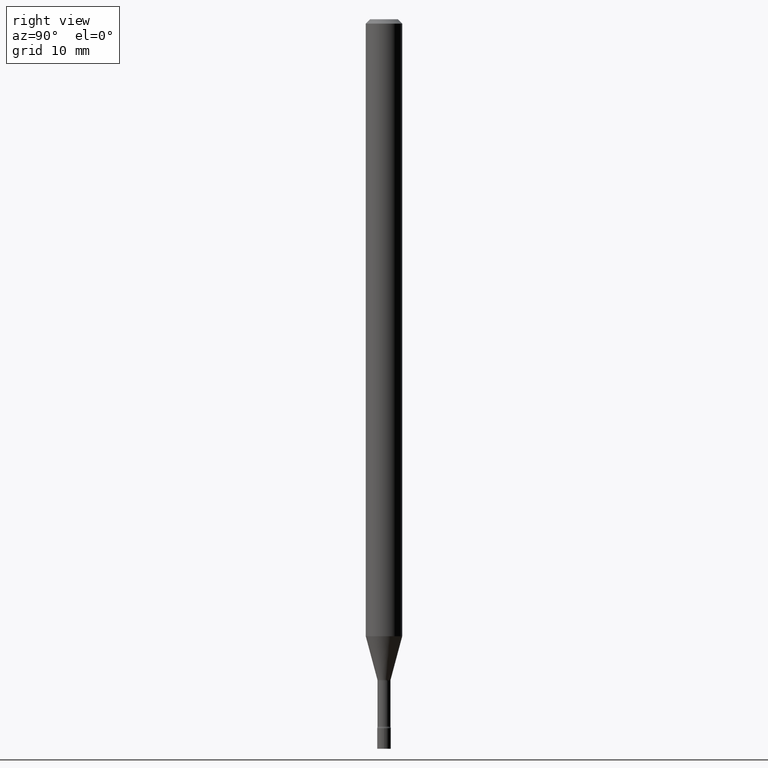
[diagram: clean part render]
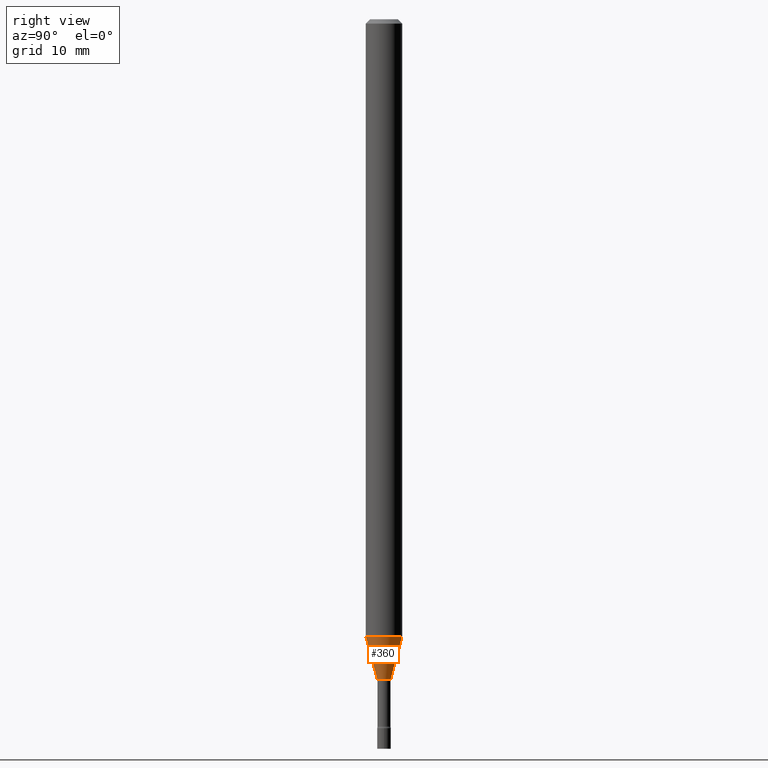
[diagram: same view with one face highlighted and labeled with its STEP entity id]
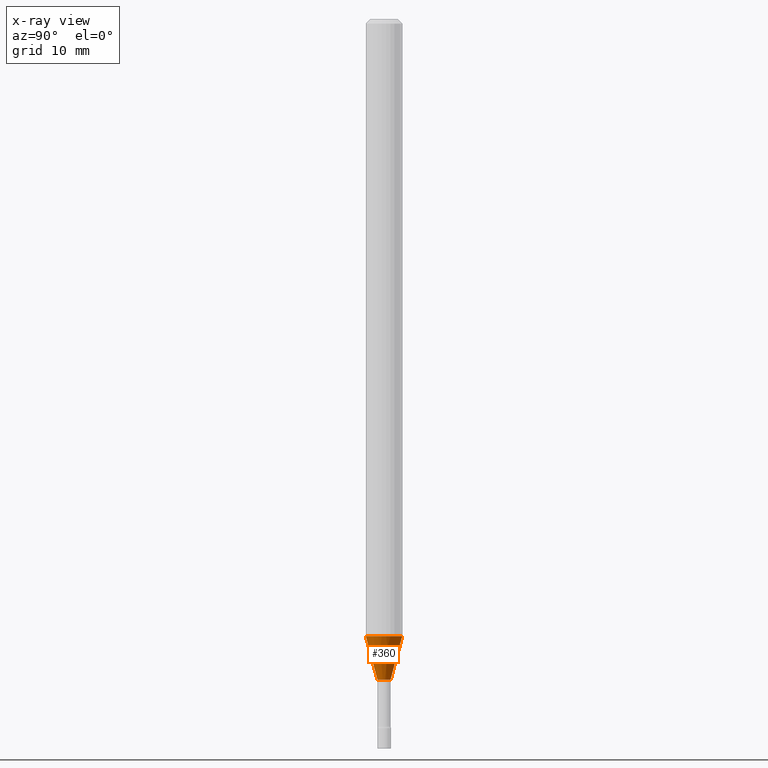
[diagram: x-ray of the same camera — body ghosted, the highlighted face saturated]
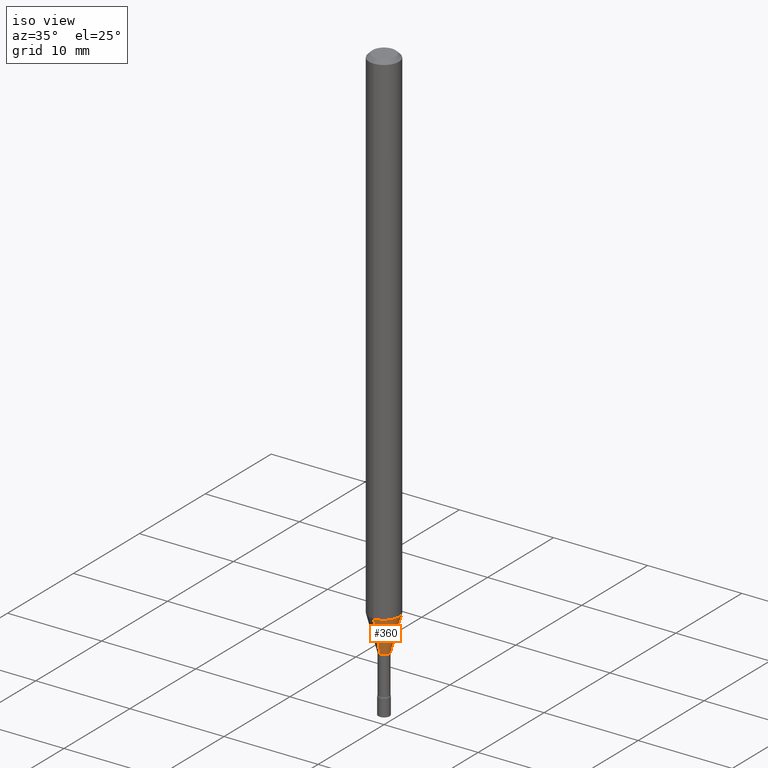
[diagram: same view with one face highlighted and labeled with its STEP entity id]
A machine part, right view. The second image highlights one B-rep face of the part: STEP entity #360.
The next image is the same camera in x-ray: the body ghosted, the highlighted face saturated — about 0% of this face is hidden behind the body in this view.
A second angle (iso view) of the same face is appended — the face is thin or edge-on in the first view.
In plain terms, the highlighted conical surface has half-angle 15 deg.
Its self-contained STEP definition (entity closure, byte-faithful):
#3 = EDGE_CURVE ( 'NONE', #193, #208, #375, .T. ) ;
#4 = CARTESIAN_POINT ( 'NONE',  ( 4.440892098501140893E-16, 0.06249999999999258926, -2.114225147374217961 ) ) ;
#31 = DIRECTION ( 'NONE',  ( -2.445456510120580117E-29, 3.491498947507439183E-15, 1.000000000000000000 ) ) ;
#35 = DIRECTION ( 'NONE',  ( -6.982962677686265922E-15, -1.000000000000000000, 0.000000000000000000 ) ) ;
#38 = CARTESIAN_POINT ( 'NONE',  ( 5.534294291500757291E-29, -7.901585088102242025E-15, -2.263092501787272948 ) ) ;
#88 = CIRCLE ( 'NONE', #151, 0.06250000000000000000 ) ;
#90 = CARTESIAN_POINT ( 'NONE',  ( 5.534294291500757291E-29, -7.901585088102242025E-15, -2.263092501787272948 ) ) ;
#96 = EDGE_LOOP ( 'NONE', ( #272, #489, #343, #479 ) ) ;
#98 = EDGE_CURVE ( 'NONE', #208, #400, #103, .T. ) ;
#100 = VECTOR ( 'NONE', #144, 39.37007874015749564 ) ;
#103 = LINE ( 'NONE', #140, #433 ) ;
#109 = EDGE_CURVE ( 'NONE', #319, #400, #88, .T. ) ;
#127 = CARTESIAN_POINT ( 'NONE',  ( 5.170245650506924061E-29, -7.381814876850842660E-15, -2.114225147374217961 ) ) ;
#140 = CARTESIAN_POINT ( 'NONE',  ( 1.606616180941370852E-16, 0.02261111260565608697, -2.263092501787272948 ) ) ;
#144 = DIRECTION ( 'NONE',  ( -1.807323732225328562E-15, -0.2588190451025179639, 0.9659258262890689783 ) ) ;
#151 = AXIS2_PLACEMENT_3D ( 'NONE', #127, #217, #164 ) ;
#164 = DIRECTION ( 'NONE',  ( -6.982962677686265922E-15, -1.000000000000000000, 4.370956789862821150E-15 ) ) ;
#193 = VERTEX_POINT ( 'NONE', #499 ) ;
#208 = VERTEX_POINT ( 'NONE', #292 ) ;
#217 = DIRECTION ( 'NONE',  ( -2.445456510120580117E-29, 3.491498947507439183E-15, 1.000000000000000000 ) ) ;
#219 = DIRECTION ( 'NONE',  ( -6.982962677686265922E-15, -1.000000000000000000, 0.000000000000000000 ) ) ;
#238 = AXIS2_PLACEMENT_3D ( 'NONE', #38, #31, #35 ) ;
#272 = ORIENTED_EDGE ( 'NONE', *, *, #3, .T. ) ;
#278 = CARTESIAN_POINT ( 'NONE',  ( -1.578925554262577325E-16, -0.02261111260567189030, -2.263092501787272948 ) ) ;
#292 = CARTESIAN_POINT ( 'NONE',  ( 3.023754139721258091E-16, 0.02261111260565609044, -2.263092501787272948 ) ) ;
#319 = VERTEX_POINT ( 'NONE', #511 ) ;
#343 = ORIENTED_EDGE ( 'NONE', *, *, #109, .F. ) ;
#360 = ADVANCED_FACE ( 'NONE', ( #383 ), #491, .T. ) ;
#369 = DIRECTION ( 'NONE',  ( -2.445456510120580117E-29, 3.491498947507439183E-15, 1.000000000000000000 ) ) ;
#375 = CIRCLE ( 'NONE', #482, 0.02261111260566398690 ) ;
#383 = FACE_OUTER_BOUND ( 'NONE', #96, .T. ) ;
#391 = EDGE_CURVE ( 'NONE', #193, #319, #506, .T. ) ;
#400 = VERTEX_POINT ( 'NONE', #4 ) ;
#414 = DIRECTION ( 'NONE',  ( 1.839019923739599526E-15, 0.2588190451025248473, 0.9659258262890673130 ) ) ;
#433 = VECTOR ( 'NONE', #414, 39.37007874015747433 ) ;
#479 = ORIENTED_EDGE ( 'NONE', *, *, #391, .F. ) ;
#482 = AXIS2_PLACEMENT_3D ( 'NONE', #90, #369, #219 ) ;
#489 = ORIENTED_EDGE ( 'NONE', *, *, #98, .T. ) ;
#491 = CONICAL_SURFACE ( 'NONE', #238, 0.02261111260566398690, 0.2617993877991501295 ) ;
#499 = CARTESIAN_POINT ( 'NONE',  ( -1.578925554262577325E-16, -0.02261111260567189030, -2.263092501787272948 ) ) ;
#506 = LINE ( 'NONE', #278, #100 ) ;
#511 = CARTESIAN_POINT ( 'NONE',  ( -4.364351673553400976E-16, -0.06250000000000741074, -2.114225147374217517 ) ) ;